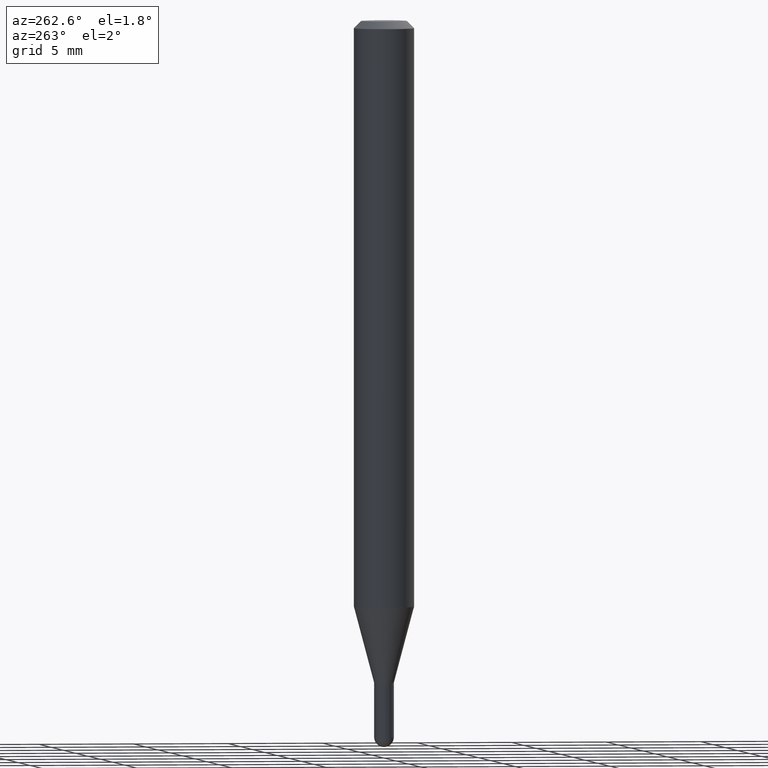
[diagram: clean part render]
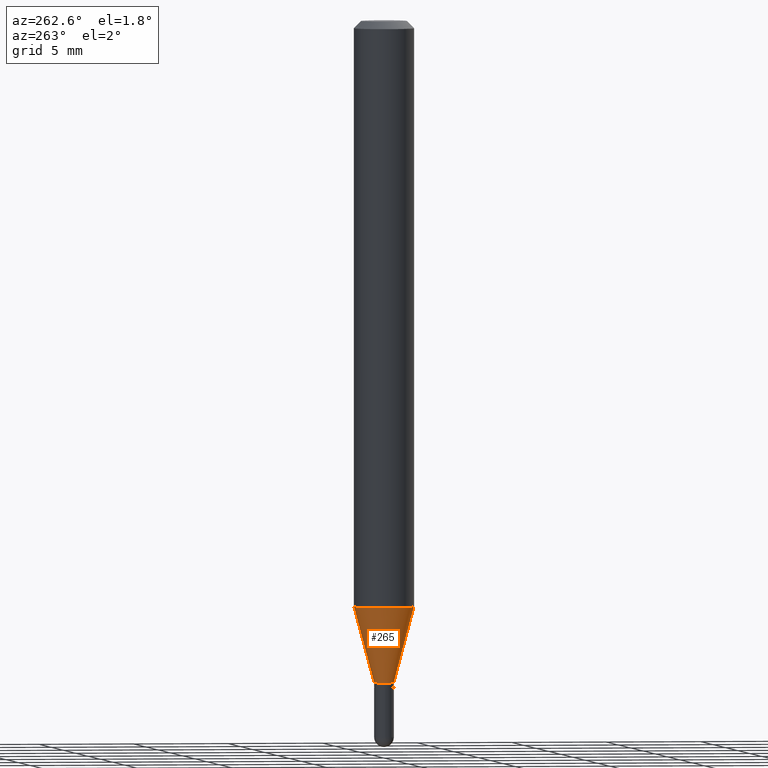
[diagram: same view with one face highlighted and labeled with its STEP entity id]
A machine part, auxiliary view. The second image highlights one B-rep face of the part: STEP entity #265.
In plain terms, the highlighted conical surface has half-angle 15 deg.
Its self-contained STEP definition (entity closure, byte-faithful):
#3 = VERTEX_POINT ( 'NONE', #367 ) ;
#16 = EDGE_CURVE ( 'NONE', #127, #327, #251, .T. ) ;
#21 = FACE_OUTER_BOUND ( 'NONE', #238, .T. ) ;
#22 = VERTEX_POINT ( 'NONE', #409 ) ;
#38 = DIRECTION ( 'NONE',  ( -6.982962677686265133E-15, -1.000000000000000000, 0.000000000000000000 ) ) ;
#87 = ORIENTED_EDGE ( 'NONE', *, *, #476, .F. ) ;
#103 = CARTESIAN_POINT ( 'NONE',  ( 2.948752353404729004E-16, 0.02049999999999516098, -1.367000000000000437 ) ) ;
#108 = CIRCLE ( 'NONE', #190, 0.02049999999999993494 ) ;
#112 = EDGE_CURVE ( 'NONE', #3, #22, #268, .T. ) ;
#113 = DIRECTION ( 'NONE',  ( -6.982962677686265133E-15, -1.000000000000000000, 0.000000000000000000 ) ) ;
#127 = VERTEX_POINT ( 'NONE', #103 ) ;
#128 = CIRCLE ( 'NONE', #428, 0.06250000000000000000 ) ;
#166 = CARTESIAN_POINT ( 'NONE',  ( 1.456612608308534545E-16, 0.02049999999999516098, -1.367000000000000437 ) ) ;
#182 = VECTOR ( 'NONE', #323, 39.37007874015748143 ) ;
#190 = AXIS2_PLACEMENT_3D ( 'NONE', #393, #348, #38 ) ;
#200 = CARTESIAN_POINT ( 'NONE',  ( 3.342725440087255398E-29, -4.773184961843087404E-15, -1.367000000000000437 ) ) ;
#212 = DIRECTION ( 'NONE',  ( -2.445300248783653263E-29, 3.491722722635761158E-15, 1.000000000000000000 ) ) ;
#219 = CONICAL_SURFACE ( 'NONE', #502, 0.02049999999999993494, 0.2617993877991509621 ) ;
#230 = DIRECTION ( 'NONE',  ( -1.807323732225334872E-15, -0.2588190451025188521, 0.9659258262890687563 ) ) ;
#238 = EDGE_LOOP ( 'NONE', ( #350, #512, #472, #87 ) ) ;
#243 = DIRECTION ( 'NONE',  ( -2.445300248783653263E-29, 3.491722722635761158E-15, 1.000000000000000000 ) ) ;
#251 = LINE ( 'NONE', #166, #182 ) ;
#265 = ADVANCED_FACE ( 'NONE', ( #21 ), #219, .T. ) ;
#268 = LINE ( 'NONE', #501, #345 ) ;
#271 = EDGE_CURVE ( 'NONE', #127, #3, #108, .T. ) ;
#323 = DIRECTION ( 'NONE',  ( 1.839019923739605048E-15, 0.2588190451025256245, 0.9659258262890669799 ) ) ;
#327 = VERTEX_POINT ( 'NONE', #432 ) ;
#345 = VECTOR ( 'NONE', #230, 39.37007874015748854 ) ;
#348 = DIRECTION ( 'NONE',  ( -2.445300248783653263E-29, 3.491722722635761158E-15, 1.000000000000000000 ) ) ;
#350 = ORIENTED_EDGE ( 'NONE', *, *, #16, .F. ) ;
#367 = CARTESIAN_POINT ( 'NONE',  ( -1.431507348925345485E-16, -0.02050000000000470543, -1.367000000000000437 ) ) ;
#370 = CARTESIAN_POINT ( 'NONE',  ( 2.959434079821957539E-29, -4.225870924356675261E-15, -1.210253866082108276 ) ) ;
#393 = CARTESIAN_POINT ( 'NONE',  ( 3.342725440087255398E-29, -4.773184961843087404E-15, -1.367000000000000437 ) ) ;
#409 = CARTESIAN_POINT ( 'NONE',  ( -4.364351673553621857E-16, -0.06250000000000424660, -1.210253866082108054 ) ) ;
#428 = AXIS2_PLACEMENT_3D ( 'NONE', #370, #212, #436 ) ;
#432 = CARTESIAN_POINT ( 'NONE',  ( 4.440892098500920012E-16, 0.06249999999999575340, -1.210253866082108720 ) ) ;
#436 = DIRECTION ( 'NONE',  ( -6.982962677686265922E-15, -1.000000000000000000, 4.370956789862821150E-15 ) ) ;
#472 = ORIENTED_EDGE ( 'NONE', *, *, #112, .T. ) ;
#476 = EDGE_CURVE ( 'NONE', #327, #22, #128, .T. ) ;
#501 = CARTESIAN_POINT ( 'NONE',  ( -1.431507348925345485E-16, -0.02050000000000470543, -1.367000000000000437 ) ) ;
#502 = AXIS2_PLACEMENT_3D ( 'NONE', #200, #243, #113 ) ;
#512 = ORIENTED_EDGE ( 'NONE', *, *, #271, .T. ) ;